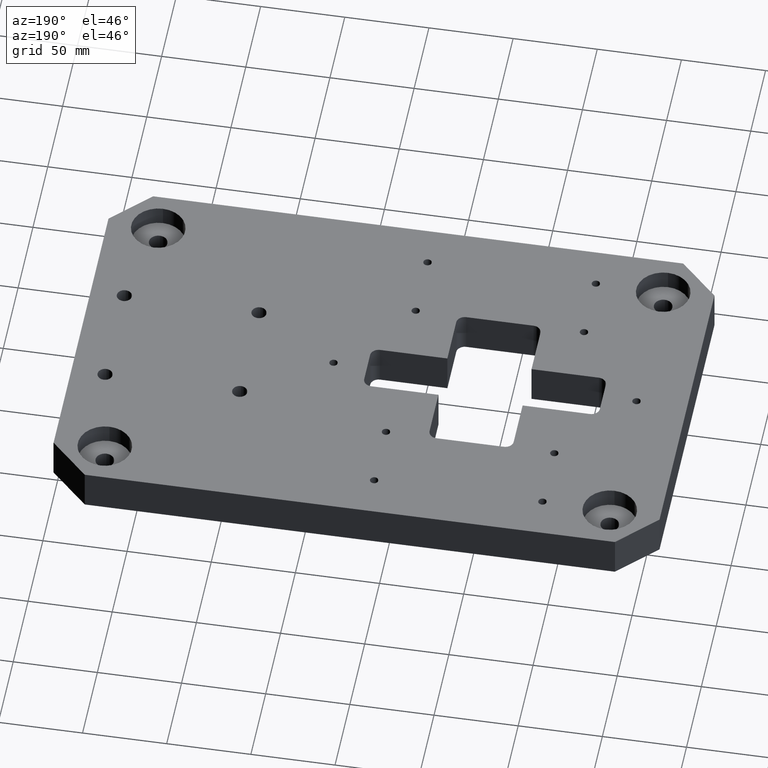
[diagram: clean part render]
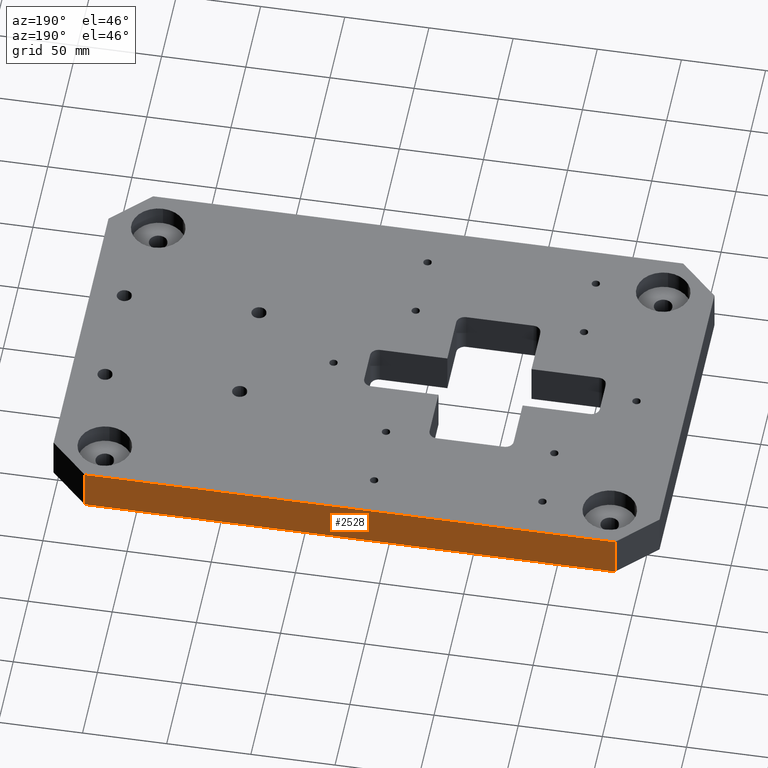
[diagram: same view with one face highlighted and labeled with its STEP entity id]
A machine part, auxiliary view. The second image highlights one B-rep face of the part: STEP entity #2528.
In plain terms, the highlighted planar face has unit normal (0, 1, 0).
Its self-contained STEP definition (entity closure, byte-faithful):
#2277=CARTESIAN_POINT('',(157.500000000000000,115.0,12.500000000000000));
#2278=VERTEX_POINT('',#2277);
#2285=CARTESIAN_POINT('',(-157.500000000000000,115.0,12.500000000000000));
#2286=VERTEX_POINT('',#2285);
#2287=CARTESIAN_POINT('',(157.500000000000000,115.0,12.500000000000000));
#2288=DIRECTION('',(-1.0,0.0,0.0));
#2289=VECTOR('',#2288,315.0);
#2290=LINE('',#2287,#2289);
#2291=EDGE_CURVE('',#2278,#2286,#2290,.T.);
#2486=CARTESIAN_POINT('',(-157.500000000000000,115.0,-12.500000000000000));
#2487=VERTEX_POINT('',#2486);
#2496=CARTESIAN_POINT('',(-157.500000000000000,115.0,12.500000000000000));
#2497=DIRECTION('',(0.0,0.0,-1.0));
#2498=VECTOR('',#2497,25.0);
#2499=LINE('',#2496,#2498);
#2500=EDGE_CURVE('',#2286,#2487,#2499,.T.);
#2505=CARTESIAN_POINT('',(180.0,115.0,12.500000000000000));
#2506=DIRECTION('',(0.0,1.0,0.0));
#2507=DIRECTION('',(0.0,0.0,1.0));
#2508=AXIS2_PLACEMENT_3D('',#2505,#2506,#2507);
#2509=PLANE('',#2508);
#2510=ORIENTED_EDGE('',*,*,#2500,.F.);
#2511=ORIENTED_EDGE('',*,*,#2291,.F.);
#2512=CARTESIAN_POINT('',(157.500000000000000,115.0,-12.500000000000000));
#2513=VERTEX_POINT('',#2512);
#2514=CARTESIAN_POINT('',(157.500000000000000,115.0,-12.500000000000000));
#2515=DIRECTION('',(0.0,0.0,1.0));
#2516=VECTOR('',#2515,25.0);
#2517=LINE('',#2514,#2516);
#2518=EDGE_CURVE('',#2513,#2278,#2517,.T.);
#2519=ORIENTED_EDGE('',*,*,#2518,.F.);
#2520=CARTESIAN_POINT('',(157.500000000000000,115.0,-12.500000000000000));
#2521=DIRECTION('',(-1.0,0.0,0.0));
#2522=VECTOR('',#2521,315.0);
#2523=LINE('',#2520,#2522);
#2524=EDGE_CURVE('',#2513,#2487,#2523,.T.);
#2525=ORIENTED_EDGE('',*,*,#2524,.T.);
#2526=EDGE_LOOP('',(#2510,#2511,#2519,#2525));
#2527=FACE_OUTER_BOUND('',#2526,.T.);
#2528=ADVANCED_FACE('',(#2527),#2509,.T.);